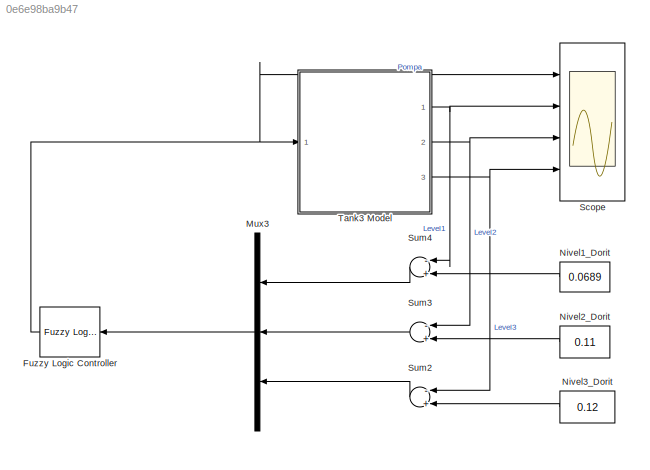
MODEL slx_0e6e98ba9b47
KIND model
CONFIG AbsTol = auto
CONFIG FixedStep = 0.1
CONFIG MaxStep = auto
CONFIG MinStep = auto
CONFIG RelTol = 1e-3
CONFIG SampleTimeConstraint = Unconstrained
CONFIG Solver = ode5
CONFIG SolverMode = Auto
CONFIG SolverName = ode5
CONFIG StartTime = 0.0
CONFIG StopTime = 600
BLOCK [Reference] Fuzzy Logic Controller  REF=fuzblock/Fuzzy Logic   (lib defined in mdl_858b3b3e7478)
Controller
  Ports = [1, 1]
  SourceBlock = fuzblock/Fuzzy Logic \nController
  SourceType = FIS
BLOCK [Mux] Mux3
  DisplayOption = bar
  Inputs = 3
  Ports = [3, 1]
BLOCK [Constant] Nivel1_Dorit
  Value = 0.0689
BLOCK [Constant] Nivel2_Dorit
  Value = 0.11
BLOCK [Constant] Nivel3_Dorit
  Value = 0.12
BLOCK [Scope] Scope
  NumInputPorts = 4
  Ports = [4]
  ScopeSpecificationString = Simulink.scopes.TimeScopeBlockCfg('CurrentConfiguration', extmgr.ConfigurationSet(extmgr.Configuration('Core','General UI',true),extmgr.Configuration('Core','Source UI',true),extmgr.Configuration('Sources','WiredSimulink',true),extmgr.Configuration('Visuals','Time Domain',true,'SerializedDisplays',{struct('MinYLimReal','-0.0002','MaxYLimReal','0.00082','YLabelReal','','MinYLimMag','0.00000','MaxYL...<+3410ch>
BLOCK [Sum] Sum2
  Inputs = -+
  Ports = [2, 1]
BLOCK [Sum] Sum3
  Inputs = -+
  Ports = [2, 1]
BLOCK [Sum] Sum4
  Inputs = -+
  Ports = [2, 1]
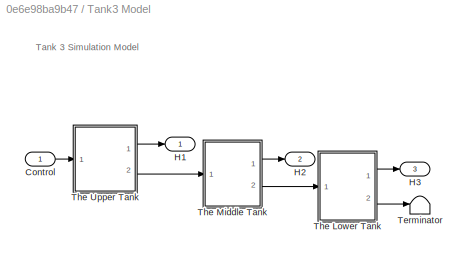
BLOCK [SubSystem] Tank3 Model
  Ports = [1, 3]
  RequestExecContextInheritance = off
  Variant = off
BLOCK [Inport] Tank3 Model/Control
  IconDisplay = Port number
BLOCK [Outport] Tank3 Model/H1
  IconDisplay = Port number
BLOCK [Outport] Tank3 Model/H2
  IconDisplay = Port number
  Port = 2
BLOCK [Outport] Tank3 Model/H3
  IconDisplay = Port number
  Port = 3
BLOCK [Terminator] Tank3 Model/Terminator
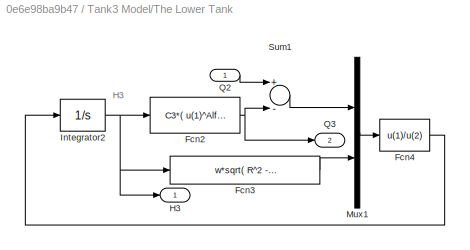
BLOCK [SubSystem] Tank3 Model/The Lower Tank
  Ports = [1, 2]
  RequestExecContextInheritance = off
  Variant = off
BLOCK [Fcn] Tank3 Model/The Lower Tank/Fcn2
  Expr = C3*( u(1)^Alfa3 )
BLOCK [Fcn] Tank3 Model/The Lower Tank/Fcn3
  Expr = w*sqrt( R^2 - (H3max-u(1))^2 )
BLOCK [Fcn] Tank3 Model/The Lower Tank/Fcn4
  Expr = u(1)/u(2)
BLOCK [Outport] Tank3 Model/The Lower Tank/H3
  IconDisplay = Port number
BLOCK [Integrator] Tank3 Model/The Lower Tank/Integrator2
  InitialCondition = H0(3)
  LimitOutput = on
  LowerSaturationLimit = 0.001
  Ports = [1, 1]
  UpperSaturationLimit = 0.3
BLOCK [Mux] Tank3 Model/The Lower Tank/Mux1
  DisplayOption = bar
  Inputs = 2
  Ports = [2, 1]
BLOCK [Inport] Tank3 Model/The Lower Tank/Q2
  IconDisplay = Port number
BLOCK [Outport] Tank3 Model/The Lower Tank/Q3
  IconDisplay = Port number
  Port = 2
BLOCK [Sum] Tank3 Model/The Lower Tank/Sum1
  Inputs = +-
  Ports = [2, 1]
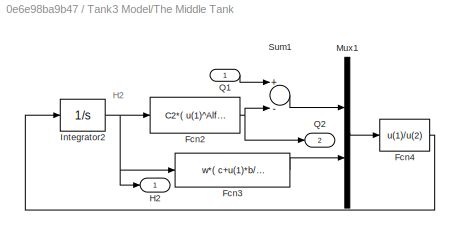
BLOCK [SubSystem] Tank3 Model/The Middle Tank
  Ports = [1, 2]
  RequestExecContextInheritance = off
  Variant = off
BLOCK [Fcn] Tank3 Model/The Middle Tank/Fcn2
  Expr = C2*( u(1)^Alfa2 )
BLOCK [Fcn] Tank3 Model/The Middle Tank/Fcn3
  Expr = w*( c+u(1)*b/H2max )
BLOCK [Fcn] Tank3 Model/The Middle Tank/Fcn4
  Expr = u(1)/u(2)
BLOCK [Outport] Tank3 Model/The Middle Tank/H2
  IconDisplay = Port number
BLOCK [Integrator] Tank3 Model/The Middle Tank/Integrator2
  InitialCondition = H0(2)
  LimitOutput = on
  LowerSaturationLimit = 0.001
  Ports = [1, 1]
  UpperSaturationLimit = 0.3
BLOCK [Mux] Tank3 Model/The Middle Tank/Mux1
  DisplayOption = bar
  Inputs = 2
  Ports = [2, 1]
BLOCK [Inport] Tank3 Model/The Middle Tank/Q1
  IconDisplay = Port number
BLOCK [Outport] Tank3 Model/The Middle Tank/Q2
  IconDisplay = Port number
  Port = 2
BLOCK [Sum] Tank3 Model/The Middle Tank/Sum1
  Inputs = +-
  Ports = [2, 1]
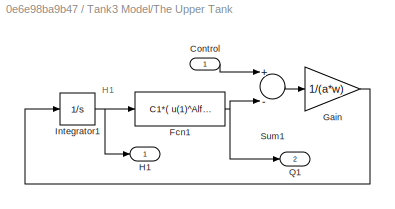
BLOCK [SubSystem] Tank3 Model/The Upper Tank
  Ports = [1, 2]
  RequestExecContextInheritance = off
  Variant = off
BLOCK [Inport] Tank3 Model/The Upper Tank/Control
  IconDisplay = Port number
BLOCK [Fcn] Tank3 Model/The Upper Tank/Fcn1
  Expr = C1*( u(1)^Alfa1 )
BLOCK [Gain] Tank3 Model/The Upper Tank/Gain
  Gain = 1/(a*w)
BLOCK [Outport] Tank3 Model/The Upper Tank/H1
  IconDisplay = Port number
BLOCK [Integrator] Tank3 Model/The Upper Tank/Integrator1
  InitialCondition = H0(1)
  LimitOutput = on
  LowerSaturationLimit = 0.001
  Ports = [1, 1]
  UpperSaturationLimit = 0.3
BLOCK [Outport] Tank3 Model/The Upper Tank/Q1
  IconDisplay = Port number
  Port = 2
BLOCK [Sum] Tank3 Model/The Upper Tank/Sum1
  Inputs = +-
  Ports = [2, 1]
ANNOTATION Tank3 Model: Tank 3 Simulation Model
ANNOTATION Tank3 Model/The Lower Tank: H3
ANNOTATION Tank3 Model/The Middle Tank: H2
ANNOTATION Tank3 Model/The Upper Tank: H1
NET Fuzzy Logic Controller:1 -> Scope:1, Tank3 Model:1
LINE Mux3:1 -> Fuzzy Logic Controller:1
LINE Nivel1_Dorit:1 -> Sum4:2
LINE Nivel2_Dorit:1 -> Sum3:2
LINE Nivel3_Dorit:1 -> Sum2:2
LINE Sum2:1 -> Mux3:3
LINE Sum3:1 -> Mux3:2
LINE Sum4:1 -> Mux3:1
LINE Tank3 Model/Control:1 -> Tank3 Model/The Upper Tank:1
NET Tank3 Model/The Lower Tank/Fcn2:1 -> Tank3 Model/The Lower Tank/Q3:1, Tank3 Model/The Lower Tank/Sum1:2
LINE Tank3 Model/The Lower Tank/Fcn3:1 -> Tank3 Model/The Lower Tank/Mux1:2
LINE Tank3 Model/The Lower Tank/Fcn4:1 -> Tank3 Model/The Lower Tank/Integrator2:1
NET Tank3 Model/The Lower Tank/Integrator2:1 -> Tank3 Model/The Lower Tank/Fcn2:1, Tank3 Model/The Lower Tank/Fcn3:1, Tank3 Model/The Lower Tank/H3:1
LINE Tank3 Model/The Lower Tank/Mux1:1 -> Tank3 Model/The Lower Tank/Fcn4:1
LINE Tank3 Model/The Lower Tank/Q2:1 -> Tank3 Model/The Lower Tank/Sum1:1
LINE Tank3 Model/The Lower Tank/Sum1:1 -> Tank3 Model/The Lower Tank/Mux1:1
LINE Tank3 Model/The Lower Tank:1 -> Tank3 Model/H3:1
LINE Tank3 Model/The Lower Tank:2 -> Tank3 Model/Terminator:1
NET Tank3 Model/The Middle Tank/Fcn2:1 -> Tank3 Model/The Middle Tank/Q2:1, Tank3 Model/The Middle Tank/Sum1:2
LINE Tank3 Model/The Middle Tank/Fcn3:1 -> Tank3 Model/The Middle Tank/Mux1:2
LINE Tank3 Model/The Middle Tank/Fcn4:1 -> Tank3 Model/The Middle Tank/Integrator2:1
NET Tank3 Model/The Middle Tank/Integrator2:1 -> Tank3 Model/The Middle Tank/Fcn2:1, Tank3 Model/The Middle Tank/Fcn3:1, Tank3 Model/The Middle Tank/H2:1
LINE Tank3 Model/The Middle Tank/Mux1:1 -> Tank3 Model/The Middle Tank/Fcn4:1
LINE Tank3 Model/The Middle Tank/Q1:1 -> Tank3 Model/The Middle Tank/Sum1:1
LINE Tank3 Model/The Middle Tank/Sum1:1 -> Tank3 Model/The Middle Tank/Mux1:1
LINE Tank3 Model/The Middle Tank:1 -> Tank3 Model/H2:1
LINE Tank3 Model/The Middle Tank:2 -> Tank3 Model/The Lower Tank:1
LINE Tank3 Model/The Upper Tank/Control:1 -> Tank3 Model/The Upper Tank/Sum1:1
NET Tank3 Model/The Upper Tank/Fcn1:1 -> Tank3 Model/The Upper Tank/Q1:1, Tank3 Model/The Upper Tank/Sum1:2
LINE Tank3 Model/The Upper Tank/Gain:1 -> Tank3 Model/The Upper Tank/Integrator1:1
NET Tank3 Model/The Upper Tank/Integrator1:1 -> Tank3 Model/The Upper Tank/Fcn1:1, Tank3 Model/The Upper Tank/H1:1
LINE Tank3 Model/The Upper Tank/Sum1:1 -> Tank3 Model/The Upper Tank/Gain:1
LINE Tank3 Model/The Upper Tank:1 -> Tank3 Model/H1:1
LINE Tank3 Model/The Upper Tank:2 -> Tank3 Model/The Middle Tank:1
NET Tank3 Model:1 -> Scope:2, Sum4:1
NET Tank3 Model:2 -> Scope:3, Sum3:1
NET Tank3 Model:3 -> Scope:4, Sum2:1
note: NET lines group one-source signal fan-out (src -> all destinations, sorted); 1:1 wires keep LINE
